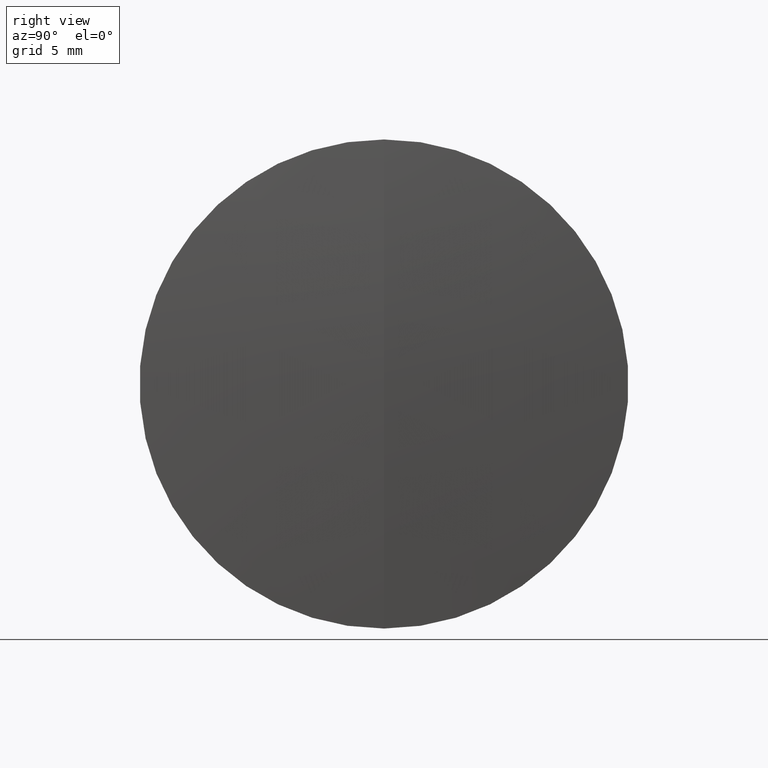
[diagram: clean part render]
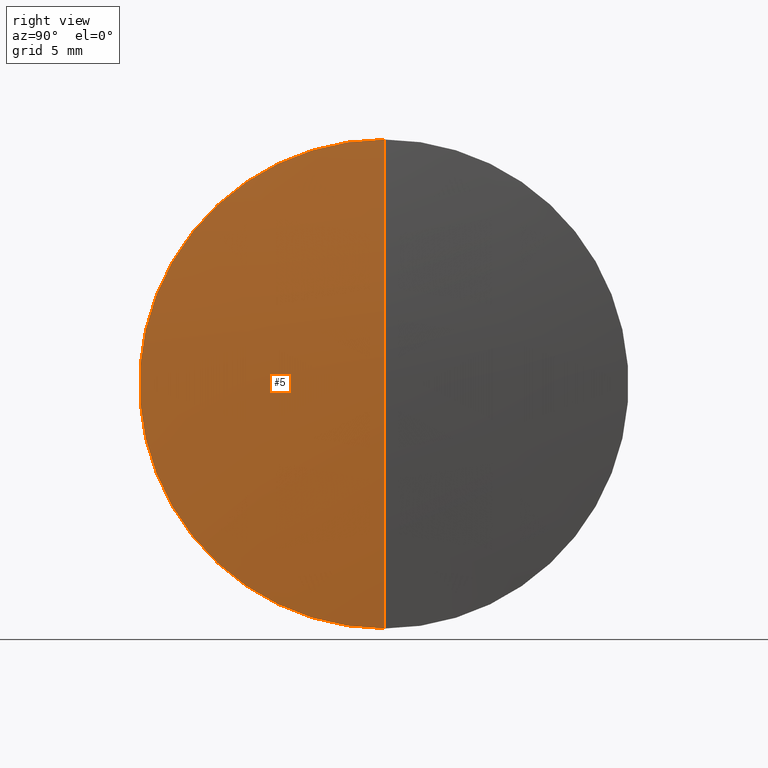
[diagram: same view with one face highlighted and labeled with its STEP entity id]
A machine part, right view. The second image highlights one B-rep face of the part: STEP entity #5.
In plain terms, the highlighted spherical surface has radius 137.09 mm.
Its self-contained STEP definition (entity closure, byte-faithful):
#5 = ADVANCED_FACE ( 'NONE', ( #118 ), #154, .T. ) ;
#26 = DIRECTION ( 'NONE',  ( -0.0000000000000000000, 1.000000000000000000, 1.224646799147353200E-016 ) ) ;
#27 = CARTESIAN_POINT ( 'NONE',  ( 151.1689865545651800, 0.0000000000000000000, 0.0000000000000000000 ) ) ;
#46 = DIRECTION ( 'NONE',  ( 0.0000000000000000000, 0.0000000000000000000, -1.000000000000000000 ) ) ;
#62 = ORIENTED_EDGE ( 'NONE', *, *, #221, .F. ) ;
#76 = DIRECTION ( 'NONE',  ( 0.0000000000000000000, -1.000000000000000000, 0.0000000000000000000 ) ) ;
#79 = DIRECTION ( 'NONE',  ( 0.0000000000000000000, 0.0000000000000000000, 1.000000000000000000 ) ) ;
#87 = DIRECTION ( 'NONE',  ( 0.0000000000000000000, -1.224646799147353000E-016, 1.000000000000000000 ) ) ;
#118 = FACE_OUTER_BOUND ( 'NONE', #300, .T. ) ;
#126 = CARTESIAN_POINT ( 'NONE',  ( 287.6694557845278800, 0.0000000000000000000, 0.0000000000000000000 ) ) ;
#130 = CARTESIAN_POINT ( 'NONE',  ( 151.1689865545651800, 0.0000000000000000000, 0.0000000000000000000 ) ) ;
#151 = VERTEX_POINT ( 'NONE', #318 ) ;
#154 = SPHERICAL_SURFACE ( 'NONE', #328, 137.0900000000000000 ) ;
#159 = CIRCLE ( 'NONE', #173, 137.0900000000000000 ) ;
#163 = VERTEX_POINT ( 'NONE', #211 ) ;
#173 = AXIS2_PLACEMENT_3D ( 'NONE', #258, #76, #46 ) ;
#185 = CIRCLE ( 'NONE', #303, 137.0900000000000000 ) ;
#191 = CIRCLE ( 'NONE', #265, 12.69999999999996600 ) ;
#201 = EDGE_CURVE ( 'NONE', #151, #277, #159, .T. ) ;
#210 = EDGE_CURVE ( 'NONE', #163, #277, #191, .T. ) ;
#211 = CARTESIAN_POINT ( 'NONE',  ( 287.6694557845278800, 1.555301434917134700E-015, -12.69999999999996600 ) ) ;
#221 = EDGE_CURVE ( 'NONE', #151, #163, #185, .T. ) ;
#230 = DIRECTION ( 'NONE',  ( -1.000000000000000000, -0.0000000000000000000, -0.0000000000000000000 ) ) ;
#258 = CARTESIAN_POINT ( 'NONE',  ( 151.1689865545651800, 0.0000000000000000000, 0.0000000000000000000 ) ) ;
#259 = ORIENTED_EDGE ( 'NONE', *, *, #210, .F. ) ;
#265 = AXIS2_PLACEMENT_3D ( 'NONE', #126, #230, #346 ) ;
#277 = VERTEX_POINT ( 'NONE', #325 ) ;
#288 = DIRECTION ( 'NONE',  ( 0.0000000000000000000, 1.000000000000000000, 0.0000000000000000000 ) ) ;
#300 = EDGE_LOOP ( 'NONE', ( #62, #331, #259 ) ) ;
#303 = AXIS2_PLACEMENT_3D ( 'NONE', #130, #26, #87 ) ;
#318 = CARTESIAN_POINT ( 'NONE',  ( 288.2589865545651800, 0.0000000000000000000, 8.394341484755531600E-015 ) ) ;
#325 = CARTESIAN_POINT ( 'NONE',  ( 287.6694557845278800, 0.0000000000000000000, 12.69999999999996600 ) ) ;
#328 = AXIS2_PLACEMENT_3D ( 'NONE', #27, #288, #79 ) ;
#331 = ORIENTED_EDGE ( 'NONE', *, *, #201, .T. ) ;
#346 = DIRECTION ( 'NONE',  ( 0.0000000000000000000, 0.0000000000000000000, 1.000000000000000000 ) ) ;